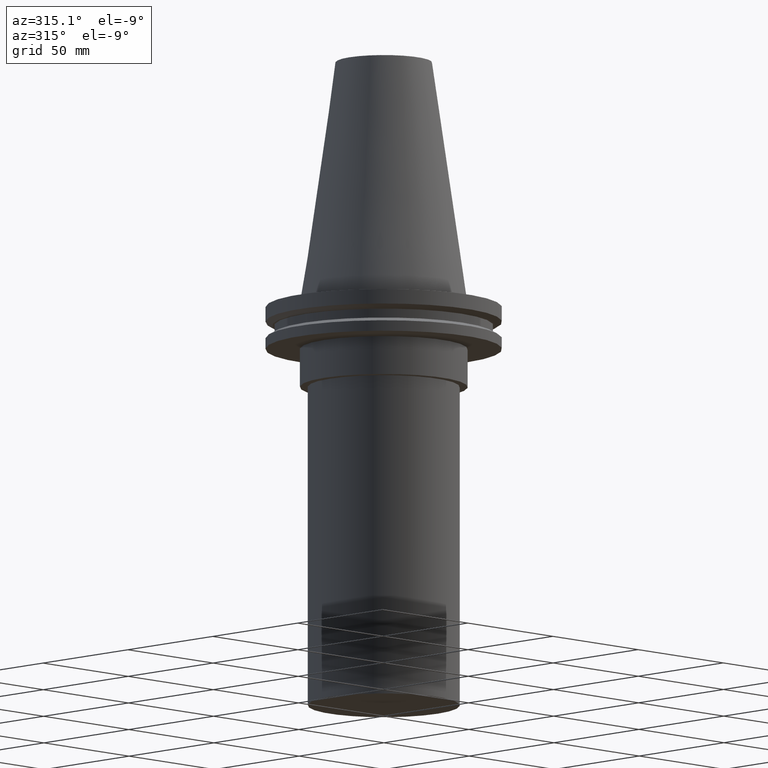
[diagram: clean part render]
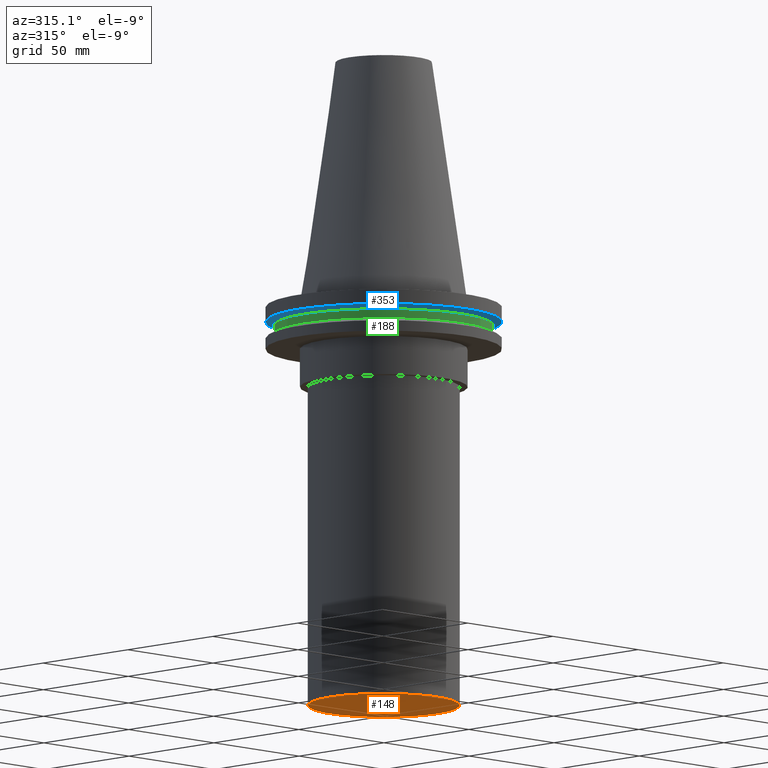
[diagram: same view with three faces highlighted in distinct colors, each labeled with its STEP entity id]
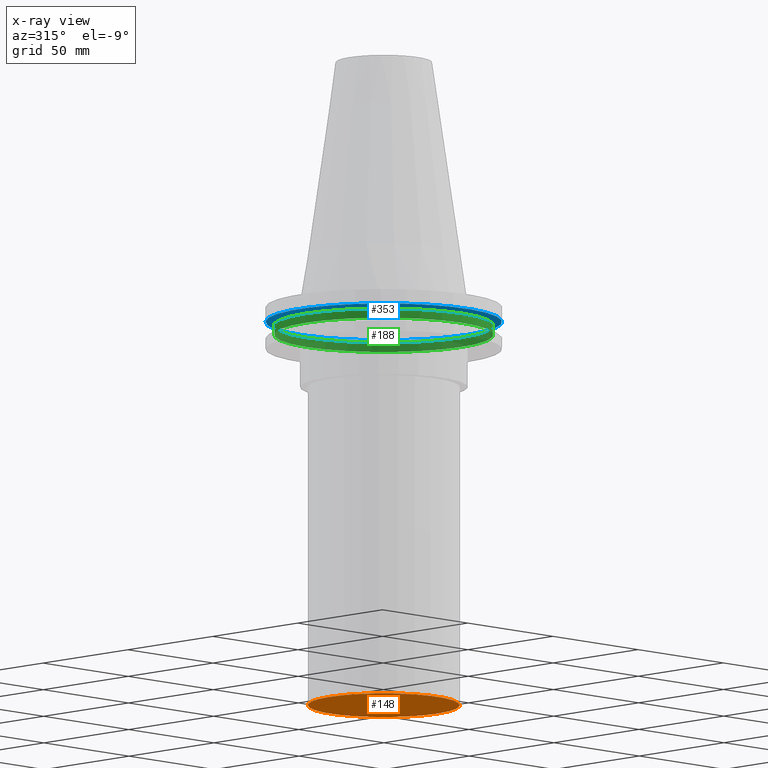
[diagram: x-ray of the same camera — body ghosted, the three highlighted faces saturated]
A machine part, auxiliary view with three faces highlighted in distinct colors.
The next image is the same camera in x-ray (body ghosted, the three faces saturated) — at least one of them is partly hidden behind the body in this view.
Their STEP definitions:

[orange] entity #148 — the highlighted planar face has unit normal (0, -0, 1).
#5 = CARTESIAN_POINT ( 'NONE',  ( 0.000000000000000000, 0.000000000000000000, -168.9999999999999432 ) ) ;
#12 = ORIENTED_EDGE ( 'NONE', *, *, #245, .F. ) ;
#58 = DIRECTION ( 'NONE',  ( 1.000000000000000000, 0.000000000000000000, 0.000000000000000000 ) ) ;
#96 = VERTEX_POINT ( 'NONE', #282 ) ;
#148 = ADVANCED_FACE ( 'NONE', ( #384 ), #239, .F. ) ;
#187 = DIRECTION ( 'NONE',  ( -0.000000000000000000, -0.000000000000000000, 1.000000000000000000 ) ) ;
#204 = DIRECTION ( 'NONE',  ( 0.000000000000000000, -0.000000000000000000, 1.000000000000000000 ) ) ;
#232 = CARTESIAN_POINT ( 'NONE',  ( 0.000000000000000000, 31.63500000000000512, -168.9999999999999432 ) ) ;
#239 = PLANE ( 'NONE',  #304 ) ;
#245 = EDGE_CURVE ( 'NONE', #96, #96, #341, .T. ) ;
#282 = CARTESIAN_POINT ( 'NONE',  ( 31.63500000000000512, 0.000000000000000000, -168.9999999999999432 ) ) ;
#304 = AXIS2_PLACEMENT_3D ( 'NONE', #232, #204, #318 ) ;
#318 = DIRECTION ( 'NONE',  ( 1.000000000000000000, 0.000000000000000000, 0.000000000000000000 ) ) ;
#341 = CIRCLE ( 'NONE', #395, 31.63500000000000512 ) ;
#355 = EDGE_LOOP ( 'NONE', ( #12 ) ) ;
#384 = FACE_OUTER_BOUND ( 'NONE', #355, .T. ) ;
#395 = AXIS2_PLACEMENT_3D ( 'NONE', #5, #187, #58 ) ;

[blue] entity #353 — the highlighted conical surface has half-angle 60 deg.
#8 = VERTEX_POINT ( 'NONE', #126 ) ;
#29 = CIRCLE ( 'NONE', #330, 46.43919780457007818 ) ;
#45 = DIRECTION ( 'NONE',  ( -0.000000000000000000, -0.000000000000000000, 1.000000000000000000 ) ) ;
#64 = CARTESIAN_POINT ( 'NONE',  ( 46.43919780457007818, 0.000000000000000000, -9.204999999999991189 ) ) ;
#69 = EDGE_LOOP ( 'NONE', ( #345 ) ) ;
#126 = CARTESIAN_POINT ( 'NONE',  ( 49.21500000000000341, 0.000000000000000000, -7.602389855251287187 ) ) ;
#127 = CARTESIAN_POINT ( 'NONE',  ( 0.000000000000000000, 0.000000000000000000, -9.204999999999991189 ) ) ;
#129 = EDGE_CURVE ( 'NONE', #281, #281, #29, .T. ) ;
#146 = CONICAL_SURFACE ( 'NONE', #358, 46.43919780457007818, 1.047197551196575205 ) ;
#170 = EDGE_CURVE ( 'NONE', #8, #8, #284, .T. ) ;
#186 = CARTESIAN_POINT ( 'NONE',  ( 0.000000000000000000, 0.000000000000000000, -9.204999999999991189 ) ) ;
#202 = ORIENTED_EDGE ( 'NONE', *, *, #170, .F. ) ;
#212 = FACE_BOUND ( 'NONE', #69, .T. ) ;
#254 = DIRECTION ( 'NONE',  ( 1.000000000000000000, 0.000000000000000000, 0.000000000000000000 ) ) ;
#281 = VERTEX_POINT ( 'NONE', #64 ) ;
#284 = CIRCLE ( 'NONE', #296, 49.21500000000000341 ) ;
#296 = AXIS2_PLACEMENT_3D ( 'NONE', #354, #45, #328 ) ;
#297 = DIRECTION ( 'NONE',  ( -0.000000000000000000, -0.000000000000000000, 1.000000000000000000 ) ) ;
#302 = DIRECTION ( 'NONE',  ( 1.000000000000000000, 0.000000000000000000, 0.000000000000000000 ) ) ;
#310 = DIRECTION ( 'NONE',  ( -0.000000000000000000, -0.000000000000000000, 1.000000000000000000 ) ) ;
#328 = DIRECTION ( 'NONE',  ( 1.000000000000000000, 0.000000000000000000, 0.000000000000000000 ) ) ;
#330 = AXIS2_PLACEMENT_3D ( 'NONE', #127, #310, #254 ) ;
#331 = FACE_OUTER_BOUND ( 'NONE', #382, .T. ) ;
#345 = ORIENTED_EDGE ( 'NONE', *, *, #129, .T. ) ;
#353 = ADVANCED_FACE ( 'NONE', ( #331, #212 ), #146, .T. ) ;
#354 = CARTESIAN_POINT ( 'NONE',  ( 0.000000000000000000, 0.000000000000000000, -7.602389855251287187 ) ) ;
#358 = AXIS2_PLACEMENT_3D ( 'NONE', #186, #297, #302 ) ;
#382 = EDGE_LOOP ( 'NONE', ( #202 ) ) ;

[green] entity #188 — the highlighted cylindrical surface (bore or boss wall) has radius 45.645 mm, axis along (-0, -0, 1).
#7 = AXIS2_PLACEMENT_3D ( 'NONE', #236, #206, #326 ) ;
#53 = DIRECTION ( 'NONE',  ( -0.000000000000000000, -0.000000000000000000, 1.000000000000000000 ) ) ;
#71 = DIRECTION ( 'NONE',  ( 1.000000000000000000, 0.000000000000000000, 0.000000000000000000 ) ) ;
#77 = CYLINDRICAL_SURFACE ( 'NONE', #7, 45.64500000000000313 ) ;
#91 = DIRECTION ( 'NONE',  ( 1.000000000000000000, 0.000000000000000000, 0.000000000000000000 ) ) ;
#103 = ORIENTED_EDGE ( 'NONE', *, *, #199, .F. ) ;
#108 = CARTESIAN_POINT ( 'NONE',  ( 0.000000000000000000, 0.000000000000000000, -9.204999999999991189 ) ) ;
#125 = CIRCLE ( 'NONE', #230, 45.64500000000000313 ) ;
#144 = ORIENTED_EDGE ( 'NONE', *, *, #369, .T. ) ;
#178 = AXIS2_PLACEMENT_3D ( 'NONE', #333, #53, #91 ) ;
#188 = ADVANCED_FACE ( 'NONE', ( #233, #380 ), #77, .T. ) ;
#199 = EDGE_CURVE ( 'NONE', #259, #259, #125, .T. ) ;
#201 = CIRCLE ( 'NONE', #178, 45.64500000000000313 ) ;
#206 = DIRECTION ( 'NONE',  ( -0.000000000000000000, -0.000000000000000000, 1.000000000000000000 ) ) ;
#221 = VERTEX_POINT ( 'NONE', #314 ) ;
#230 = AXIS2_PLACEMENT_3D ( 'NONE', #108, #349, #71 ) ;
#233 = FACE_OUTER_BOUND ( 'NONE', #287, .T. ) ;
#236 = CARTESIAN_POINT ( 'NONE',  ( 0.000000000000000000, 0.000000000000000000, 101.5999999999999943 ) ) ;
#259 = VERTEX_POINT ( 'NONE', #368 ) ;
#268 = EDGE_LOOP ( 'NONE', ( #144 ) ) ;
#287 = EDGE_LOOP ( 'NONE', ( #103 ) ) ;
#314 = CARTESIAN_POINT ( 'NONE',  ( 45.64500000000000313, 0.000000000000000000, -13.05499999999999794 ) ) ;
#326 = DIRECTION ( 'NONE',  ( 1.000000000000000000, 0.000000000000000000, 0.000000000000000000 ) ) ;
#333 = CARTESIAN_POINT ( 'NONE',  ( 0.000000000000000000, 0.000000000000000000, -13.05499999999999794 ) ) ;
#349 = DIRECTION ( 'NONE',  ( -0.000000000000000000, -0.000000000000000000, 1.000000000000000000 ) ) ;
#368 = CARTESIAN_POINT ( 'NONE',  ( 45.64500000000000313, 0.000000000000000000, -9.204999999999991189 ) ) ;
#369 = EDGE_CURVE ( 'NONE', #221, #221, #201, .T. ) ;
#380 = FACE_OUTER_BOUND ( 'NONE', #268, .T. ) ;